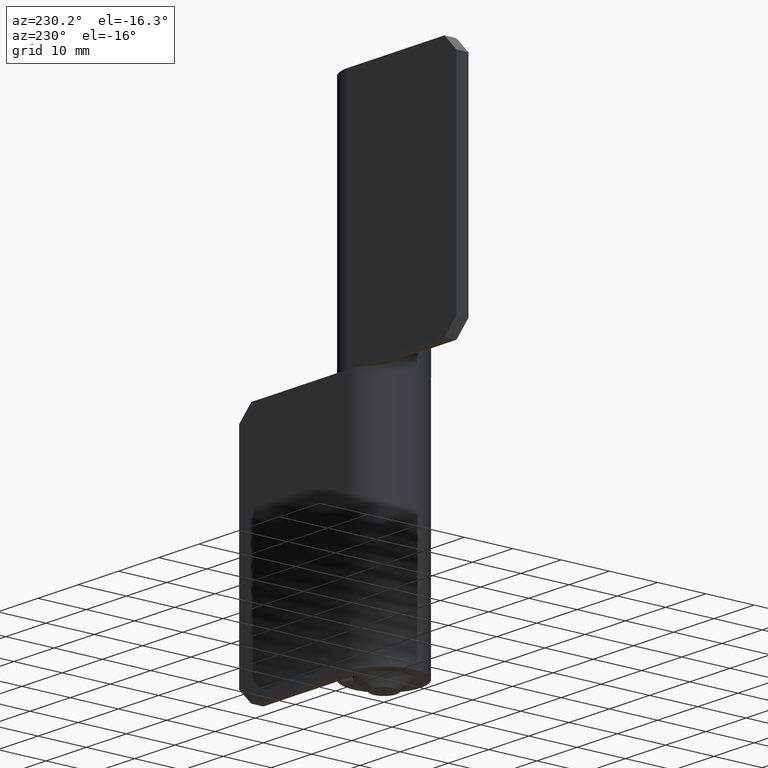
[diagram: clean part render]
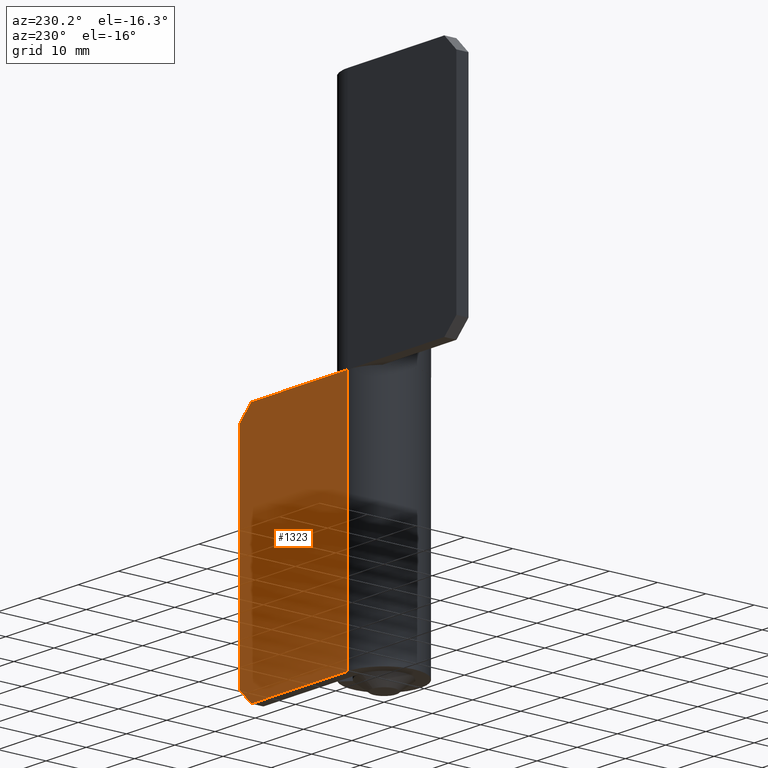
[diagram: same view with one face highlighted and labeled with its STEP entity id]
A machine part, auxiliary view. The second image highlights one B-rep face of the part: STEP entity #1323.
In plain terms, the highlighted face is a freeform B-spline surface patch.
Its self-contained STEP definition (entity closure, byte-faithful):
#979=CARTESIAN_POINT('',(24.0,7.500000000000000,50.0));
#980=VERTEX_POINT('',#979);
#981=CARTESIAN_POINT('',(27.0,7.500000000000000,47.0));
#982=VERTEX_POINT('',#981);
#983=CARTESIAN_POINT('',(24.0,7.500000000000000,50.0));
#984=CARTESIAN_POINT('',(27.0,7.500000000000000,47.0));
#985=QUASI_UNIFORM_CURVE('',1,(#983,#984),.UNSPECIFIED.,.F.,.U.);
#986=EDGE_CURVE('',#980,#982,#985,.T.);
#1015=CARTESIAN_POINT('',(27.0,7.500000000000000,3.0));
#1016=VERTEX_POINT('',#1015);
#1017=CARTESIAN_POINT('',(24.0,7.500000000000000,2.775558E-014));
#1018=VERTEX_POINT('',#1017);
#1019=CARTESIAN_POINT('',(27.0,7.500000000000000,3.0));
#1020=CARTESIAN_POINT('',(24.0,7.500000000000000,2.775558E-014));
#1021=QUASI_UNIFORM_CURVE('',1,(#1019,#1020),.UNSPECIFIED.,.F.,.U.);
#1022=EDGE_CURVE('',#1016,#1018,#1021,.T.);
#1051=CARTESIAN_POINT('',(-1.377682E-015,7.500000000000000,0.0));
#1052=VERTEX_POINT('',#1051);
#1053=CARTESIAN_POINT('',(-1.377682E-015,7.500000000000000,0.0));
#1054=CARTESIAN_POINT('',(24.0,7.500000000000000,2.775558E-014));
#1055=QUASI_UNIFORM_CURVE('',1,(#1053,#1054),.UNSPECIFIED.,.F.,.U.);
#1056=EDGE_CURVE('',#1052,#1018,#1055,.T.);
#1129=CARTESIAN_POINT('',(-1.377682E-015,7.500000000000000,50.0));
#1130=VERTEX_POINT('',#1129);
#1131=CARTESIAN_POINT('',(-1.377682E-015,7.500000000000000,50.0));
#1132=CARTESIAN_POINT('',(24.0,7.500000000000000,50.0));
#1133=QUASI_UNIFORM_CURVE('',1,(#1131,#1132),.UNSPECIFIED.,.F.,.U.);
#1134=EDGE_CURVE('',#1130,#980,#1133,.T.);
#1219=CARTESIAN_POINT('',(-1.377682E-015,7.500000000000000,50.0));
#1220=CARTESIAN_POINT('',(-1.377682E-015,7.500000000000000,0.0));
#1221=QUASI_UNIFORM_CURVE('',1,(#1219,#1220),.UNSPECIFIED.,.F.,.U.);
#1222=EDGE_CURVE('',#1130,#1052,#1221,.T.);
#1301=CARTESIAN_POINT('',(27.0,7.500000000000000,47.0));
#1302=CARTESIAN_POINT('',(27.0,7.500000000000000,3.0));
#1303=QUASI_UNIFORM_CURVE('',1,(#1301,#1302),.UNSPECIFIED.,.F.,.U.);
#1304=EDGE_CURVE('',#982,#1016,#1303,.T.);
#1310=CARTESIAN_POINT('',(-1.348649947668761,7.500000000000000,-2.497499903090299));
#1311=CARTESIAN_POINT('',(-1.348649947668761,7.500000000000000,52.497501244194808));
#1312=CARTESIAN_POINT('',(28.348650671865190,7.500000000000000,-2.497499903090299));
#1313=CARTESIAN_POINT('',(28.348650671865190,7.500000000000000,52.497501244194808));
#1314=B_SPLINE_SURFACE_WITH_KNOTS('',1,1,((#1310,#1312),(#1311,#1313)),.UNSPECIFIED.,.F.,.F.,.U.,(2,2),(2,2),(0.0,54.995001147285109),(0.0,29.697300619533959),.UNSPECIFIED.);
#1315=ORIENTED_EDGE('',*,*,#1304,.T.);
#1316=ORIENTED_EDGE('',*,*,#1022,.T.);
#1317=ORIENTED_EDGE('',*,*,#1056,.F.);
#1318=ORIENTED_EDGE('',*,*,#1222,.F.);
#1319=ORIENTED_EDGE('',*,*,#1134,.T.);
#1320=ORIENTED_EDGE('',*,*,#986,.T.);
#1321=EDGE_LOOP('',(#1315,#1316,#1317,#1318,#1319,#1320));
#1322=FACE_OUTER_BOUND('',#1321,.T.);
#1323=ADVANCED_FACE('',(#1322),#1314,.T.);